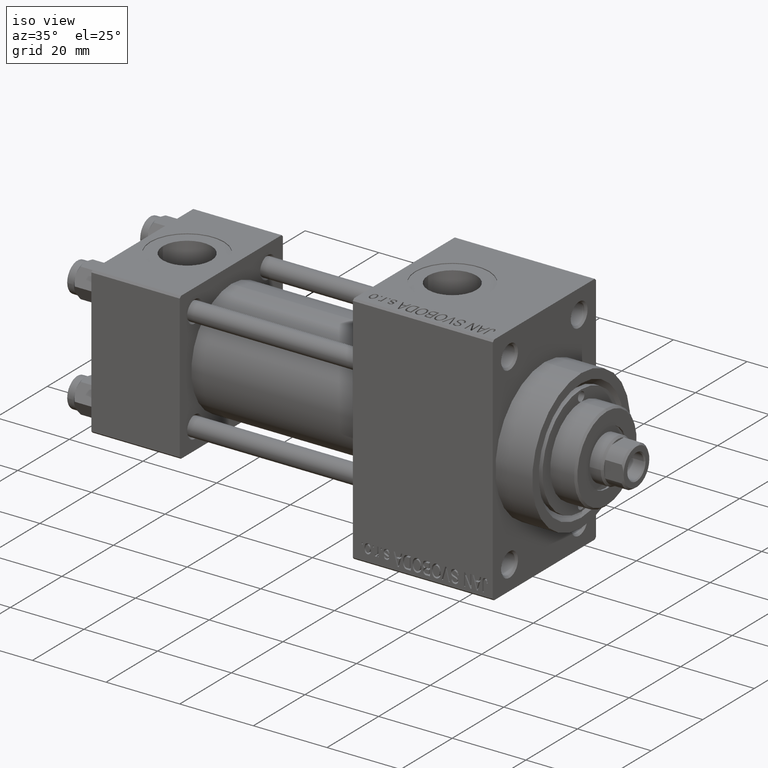
[diagram: clean part render]
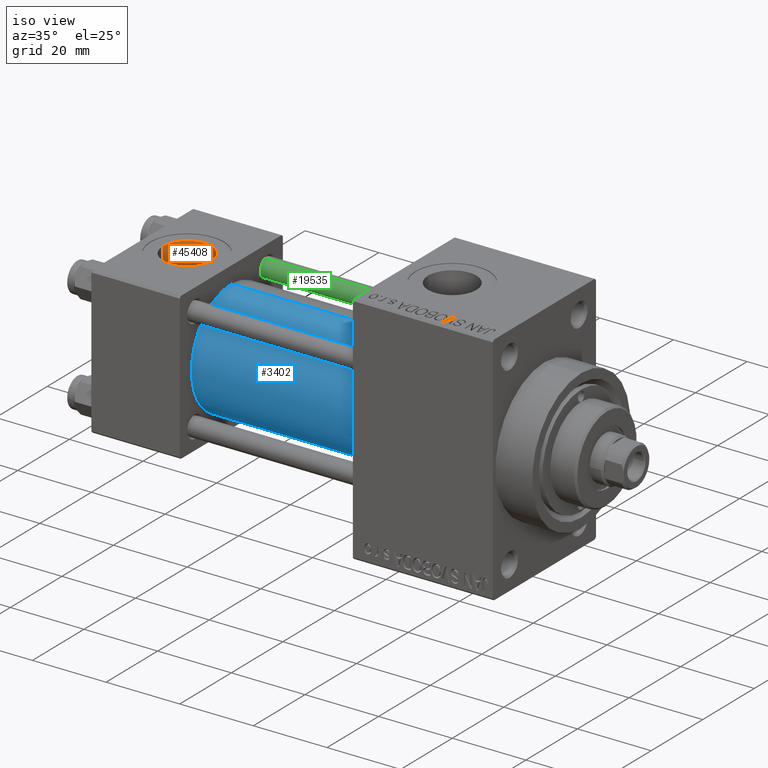
[diagram: same view with three faces highlighted in distinct colors, each labeled with its STEP entity id]
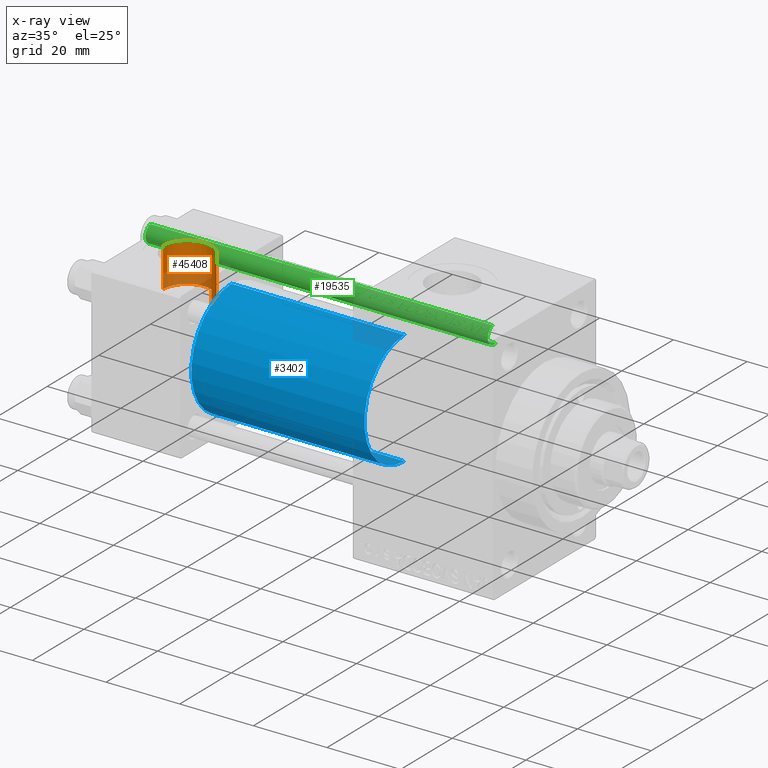
[diagram: x-ray of the same camera — body ghosted, the three highlighted faces saturated]
A machine part, iso view with three faces highlighted in distinct colors.
The next image is the same camera in x-ray (body ghosted, the three faces saturated) — at least one of them is partly hidden behind the body in this view.
Their STEP definitions:

[orange] entity #45408 — the highlighted cylindrical surface (edge-blend (fillet) strip) has radius 6.58 mm, axis along (0, 0, 1).
#104 = DIRECTION ( 'NONE',  ( -0.000000000000000000, -0.000000000000000000, 1.000000000000000000 ) ) ;
#1691 = DIRECTION ( 'NONE',  ( -0.000000000000000000, -0.000000000000000000, 1.000000000000000000 ) ) ;
#3238 = ORIENTED_EDGE ( 'NONE', *, *, #8843, .F. ) ;
#4065 = ORIENTED_EDGE ( 'NONE', *, *, #33748, .T. ) ;
#5930 = LINE ( 'NONE', #21121, #15497 ) ;
#7091 = DIRECTION ( 'NONE',  ( -0.000000000000000000, -0.000000000000000000, -1.000000000000000000 ) ) ;
#7797 = LINE ( 'NONE', #22750, #38099 ) ;
#8580 = CARTESIAN_POINT ( 'NONE',  ( 5.420000000000000817, 8.058175938389596335E-16, 19.79999999999999716 ) ) ;
#8843 = EDGE_CURVE ( 'NONE', #24364, #35346, #7797, .T. ) ;
#9337 = AXIS2_PLACEMENT_3D ( 'NONE', #25047, #21566, #25552 ) ;
#12437 = CARTESIAN_POINT ( 'NONE',  ( 18.57999999999999829, 1.540743955509788682E-30, 19.79999999999999716 ) ) ;
#13304 = VERTEX_POINT ( 'NONE', #12437 ) ;
#13390 = VERTEX_POINT ( 'NONE', #19915 ) ;
#15046 = DIRECTION ( 'NONE',  ( 1.000000000000000000, 0.000000000000000000, 0.000000000000000000 ) ) ;
#15295 = CYLINDRICAL_SURFACE ( 'NONE', #20813, 6.579999999999999183 ) ;
#15497 = VECTOR ( 'NONE', #1691, 1000.000000000000000 ) ;
#15518 = DIRECTION ( 'NONE',  ( -0.000000000000000000, -0.000000000000000000, 1.000000000000000000 ) ) ;
#17094 = ORIENTED_EDGE ( 'NONE', *, *, #22241, .T. ) ;
#19915 = CARTESIAN_POINT ( 'NONE',  ( 18.57999999999999829, 1.540743955509788682E-30, 9.165987261146492315 ) ) ;
#20813 = AXIS2_PLACEMENT_3D ( 'NONE', #45439, #104, #15046 ) ;
#21121 = CARTESIAN_POINT ( 'NONE',  ( 18.57999999999999829, 1.540743955509788682E-30, 9.199999999999995737 ) ) ;
#21566 = DIRECTION ( 'NONE',  ( 0.000000000000000000, 0.000000000000000000, 1.000000000000000000 ) ) ;
#22148 = AXIS2_PLACEMENT_3D ( 'NONE', #29760, #7091, #26020 ) ;
#22241 = EDGE_CURVE ( 'NONE', #13390, #13304, #5930, .T. ) ;
#22750 = CARTESIAN_POINT ( 'NONE',  ( 5.420000000000000817, 8.058175938389596335E-16, 9.199999999999995737 ) ) ;
#24364 = VERTEX_POINT ( 'NONE', #46344 ) ;
#25047 = CARTESIAN_POINT ( 'NONE',  ( 12.00000000000000000, 1.540743955509788682E-30, 19.79999999999999716 ) ) ;
#25552 = DIRECTION ( 'NONE',  ( 1.000000000000000000, 0.000000000000000000, 0.000000000000000000 ) ) ;
#26020 = DIRECTION ( 'NONE',  ( 1.000000000000000000, 0.000000000000000000, 0.000000000000000000 ) ) ;
#29323 = EDGE_CURVE ( 'NONE', #13304, #35346, #30811, .T. ) ;
#29760 = CARTESIAN_POINT ( 'NONE',  ( 12.00000000000000000, 1.540743955509788682E-30, 9.165987261146492315 ) ) ;
#30243 = FACE_OUTER_BOUND ( 'NONE', #43179, .T. ) ;
#30811 = CIRCLE ( 'NONE', #9337, 6.579999999999999183 ) ;
#33748 = EDGE_CURVE ( 'NONE', #24364, #13390, #46765, .T. ) ;
#35346 = VERTEX_POINT ( 'NONE', #8580 ) ;
#38099 = VECTOR ( 'NONE', #15518, 1000.000000000000000 ) ;
#43179 = EDGE_LOOP ( 'NONE', ( #3238, #4065, #17094, #43433 ) ) ;
#43433 = ORIENTED_EDGE ( 'NONE', *, *, #29323, .T. ) ;
#45408 = ADVANCED_FACE ( 'NONE', ( #30243 ), #15295, .F. ) ;
#45439 = CARTESIAN_POINT ( 'NONE',  ( 12.00000000000000000, 1.540743955509788682E-30, 9.199999999999995737 ) ) ;
#46344 = CARTESIAN_POINT ( 'NONE',  ( 5.420000000000000817, 8.058175938389596335E-16, 9.165987261146492315 ) ) ;
#46765 = CIRCLE ( 'NONE', #22148, 6.579999999999999183 ) ;

[blue] entity #3402 — the highlighted cylindrical surface (partial cylindrical patch) has radius 15.5 mm, axis along (-1, -0, -0).
#961 = EDGE_CURVE ( 'NONE', #12601, #30895, #11228, .T. ) ;
#1705 = ORIENTED_EDGE ( 'NONE', *, *, #961, .T. ) ;
#3215 = CARTESIAN_POINT ( 'NONE',  ( 24.00000000000000000, -7.038826752868131828E-16, -15.50000000000000000 ) ) ;
#3402 = ADVANCED_FACE ( 'NONE', ( #33482 ), #40437, .T. ) ;
#3795 = CIRCLE ( 'NONE', #8546, 15.50000000000000000 ) ;
#3929 = AXIS2_PLACEMENT_3D ( 'NONE', #36094, #19921, #39095 ) ;
#6323 = CARTESIAN_POINT ( 'NONE',  ( 71.00000000000001421, -2.602085213965210642E-15, 0.000000000000000000 ) ) ;
#7735 = ORIENTED_EDGE ( 'NONE', *, *, #35435, .F. ) ;
#8546 = AXIS2_PLACEMENT_3D ( 'NONE', #14020, #47907, #25735 ) ;
#9240 = EDGE_CURVE ( 'NONE', #30895, #42201, #14258, .T. ) ;
#11228 = LINE ( 'NONE', #48850, #35566 ) ;
#12601 = VERTEX_POINT ( 'NONE', #46930 ) ;
#13175 = CARTESIAN_POINT ( 'NONE',  ( 24.00000000000000000, -2.602085213965210642E-15, 15.50000000000000000 ) ) ;
#14020 = CARTESIAN_POINT ( 'NONE',  ( 71.00000000000001421, -2.602085213965210642E-15, 0.000000000000000000 ) ) ;
#14258 = CIRCLE ( 'NONE', #3929, 15.50000000000000000 ) ;
#14297 = DIRECTION ( 'NONE',  ( -1.000000000000000000, -0.000000000000000000, -0.000000000000000000 ) ) ;
#16486 = EDGE_LOOP ( 'NONE', ( #7735, #45052, #1705, #40465 ) ) ;
#19087 = VERTEX_POINT ( 'NONE', #25934 ) ;
#19921 = DIRECTION ( 'NONE',  ( 1.000000000000000000, 0.000000000000000000, 0.000000000000000000 ) ) ;
#22992 = VECTOR ( 'NONE', #44441, 1000.000000000000000 ) ;
#25735 = DIRECTION ( 'NONE',  ( 0.000000000000000000, 0.000000000000000000, -1.000000000000000000 ) ) ;
#25934 = CARTESIAN_POINT ( 'NONE',  ( 71.00000000000001421, -7.038826752868131828E-16, -15.50000000000000000 ) ) ;
#28810 = EDGE_CURVE ( 'NONE', #12601, #19087, #3795, .T. ) ;
#29235 = CARTESIAN_POINT ( 'NONE',  ( 71.00000000000001421, -7.038826752868131828E-16, -15.50000000000000000 ) ) ;
#29666 = DIRECTION ( 'NONE',  ( -1.000000000000000000, -0.000000000000000000, -0.000000000000000000 ) ) ;
#30895 = VERTEX_POINT ( 'NONE', #13175 ) ;
#33482 = FACE_OUTER_BOUND ( 'NONE', #16486, .T. ) ;
#33725 = DIRECTION ( 'NONE',  ( 0.000000000000000000, 0.000000000000000000, 1.000000000000000000 ) ) ;
#35435 = EDGE_CURVE ( 'NONE', #19087, #42201, #44194, .T. ) ;
#35566 = VECTOR ( 'NONE', #29666, 1000.000000000000000 ) ;
#36094 = CARTESIAN_POINT ( 'NONE',  ( 24.00000000000000000, -2.602085213965210642E-15, 0.000000000000000000 ) ) ;
#39095 = DIRECTION ( 'NONE',  ( 0.000000000000000000, 0.000000000000000000, 1.000000000000000000 ) ) ;
#40437 = CYLINDRICAL_SURFACE ( 'NONE', #46000, 15.50000000000000000 ) ;
#40465 = ORIENTED_EDGE ( 'NONE', *, *, #9240, .T. ) ;
#42201 = VERTEX_POINT ( 'NONE', #3215 ) ;
#44194 = LINE ( 'NONE', #29235, #22992 ) ;
#44441 = DIRECTION ( 'NONE',  ( -1.000000000000000000, -0.000000000000000000, -0.000000000000000000 ) ) ;
#45052 = ORIENTED_EDGE ( 'NONE', *, *, #28810, .F. ) ;
#46000 = AXIS2_PLACEMENT_3D ( 'NONE', #6323, #14297, #33725 ) ;
#46930 = CARTESIAN_POINT ( 'NONE',  ( 71.00000000000001421, -2.602085213965210642E-15, 15.50000000000000000 ) ) ;
#47907 = DIRECTION ( 'NONE',  ( 1.000000000000000000, 0.000000000000000000, 0.000000000000000000 ) ) ;
#48850 = CARTESIAN_POINT ( 'NONE',  ( 71.00000000000001421, -2.602085213965210642E-15, 15.50000000000000000 ) ) ;

[green] entity #19535 — the highlighted cylindrical surface (edge-blend (fillet) strip) has radius 2.5 mm, axis along (-1, -0, 0).
#252 = EDGE_CURVE ( 'NONE', #45517, #5818, #3975, .T. ) ;
#517 = VECTOR ( 'NONE', #22906, 1000.000000000000000 ) ;
#1356 = CARTESIAN_POINT ( 'NONE',  ( 0.000000000000000000, 0.000000000000000000, 93.50000000000001421 ) ) ;
#3975 = LINE ( 'NONE', #15191, #517 ) ;
#5793 = CARTESIAN_POINT ( 'NONE',  ( -2.500000000000000000, 0.000000000000000000, 94.00000000000000000 ) ) ;
#5818 = VERTEX_POINT ( 'NONE', #11433 ) ;
#6563 = EDGE_CURVE ( 'NONE', #29774, #33598, #39913, .T. ) ;
#7565 = CARTESIAN_POINT ( 'NONE',  ( 0.000000000000000000, 0.000000000000000000, 94.00000000000000000 ) ) ;
#9479 = AXIS2_PLACEMENT_3D ( 'NONE', #12755, #43150, #19496 ) ;
#10780 = EDGE_CURVE ( 'NONE', #45517, #29774, #16693, .T. ) ;
#11433 = CARTESIAN_POINT ( 'NONE',  ( 2.500000000000000000, 3.061616997868383141E-16, 0.5000000000000004441 ) ) ;
#12755 = CARTESIAN_POINT ( 'NONE',  ( 0.000000000000000000, 0.000000000000000000, 0.5000000000000004441 ) ) ;
#13466 = VECTOR ( 'NONE', #43914, 1000.000000000000000 ) ;
#15112 = ORIENTED_EDGE ( 'NONE', *, *, #10780, .T. ) ;
#15191 = CARTESIAN_POINT ( 'NONE',  ( 2.500000000000000000, 3.061616997868383141E-16, 94.00000000000000000 ) ) ;
#15723 = ORIENTED_EDGE ( 'NONE', *, *, #35724, .T. ) ;
#16500 = CARTESIAN_POINT ( 'NONE',  ( 2.500000000000000000, 3.061616997868383141E-16, 93.50000000000001421 ) ) ;
#16693 = CIRCLE ( 'NONE', #19855, 2.500000000000000000 ) ;
#19019 = DIRECTION ( 'NONE',  ( -1.000000000000000000, 0.000000000000000000, 0.000000000000000000 ) ) ;
#19243 = EDGE_LOOP ( 'NONE', ( #28726, #15112, #38164, #15723 ) ) ;
#19496 = DIRECTION ( 'NONE',  ( 1.000000000000000000, 0.000000000000000000, 0.000000000000000000 ) ) ;
#19535 = ADVANCED_FACE ( 'NONE', ( #41690 ), #26499, .T. ) ;
#19855 = AXIS2_PLACEMENT_3D ( 'NONE', #1356, #24288, #46698 ) ;
#21779 = DIRECTION ( 'NONE',  ( -0.000000000000000000, -0.000000000000000000, -1.000000000000000000 ) ) ;
#22906 = DIRECTION ( 'NONE',  ( -0.000000000000000000, -0.000000000000000000, -1.000000000000000000 ) ) ;
#23459 = AXIS2_PLACEMENT_3D ( 'NONE', #7565, #21779, #19019 ) ;
#24288 = DIRECTION ( 'NONE',  ( 0.000000000000000000, 0.000000000000000000, -1.000000000000000000 ) ) ;
#26499 = CYLINDRICAL_SURFACE ( 'NONE', #23459, 2.500000000000000000 ) ;
#27777 = CIRCLE ( 'NONE', #9479, 2.500000000000000000 ) ;
#27926 = CARTESIAN_POINT ( 'NONE',  ( -2.500000000000000000, 0.000000000000000000, 93.50000000000001421 ) ) ;
#28726 = ORIENTED_EDGE ( 'NONE', *, *, #252, .F. ) ;
#29774 = VERTEX_POINT ( 'NONE', #27926 ) ;
#33598 = VERTEX_POINT ( 'NONE', #35249 ) ;
#35249 = CARTESIAN_POINT ( 'NONE',  ( -2.500000000000000000, 0.000000000000000000, 0.5000000000000004441 ) ) ;
#35724 = EDGE_CURVE ( 'NONE', #33598, #5818, #27777, .T. ) ;
#38164 = ORIENTED_EDGE ( 'NONE', *, *, #6563, .T. ) ;
#39913 = LINE ( 'NONE', #5793, #13466 ) ;
#41690 = FACE_OUTER_BOUND ( 'NONE', #19243, .T. ) ;
#43150 = DIRECTION ( 'NONE',  ( -0.000000000000000000, -0.000000000000000000, 1.000000000000000000 ) ) ;
#43914 = DIRECTION ( 'NONE',  ( -0.000000000000000000, -0.000000000000000000, -1.000000000000000000 ) ) ;
#45517 = VERTEX_POINT ( 'NONE', #16500 ) ;
#46698 = DIRECTION ( 'NONE',  ( 1.000000000000000000, 0.000000000000000000, 0.000000000000000000 ) ) ;